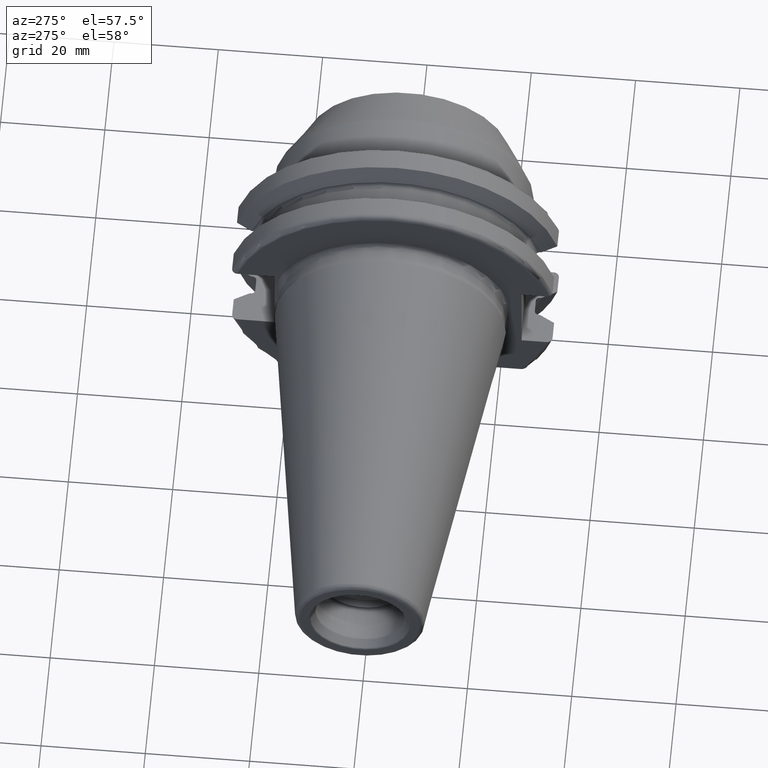
[diagram: clean part render]
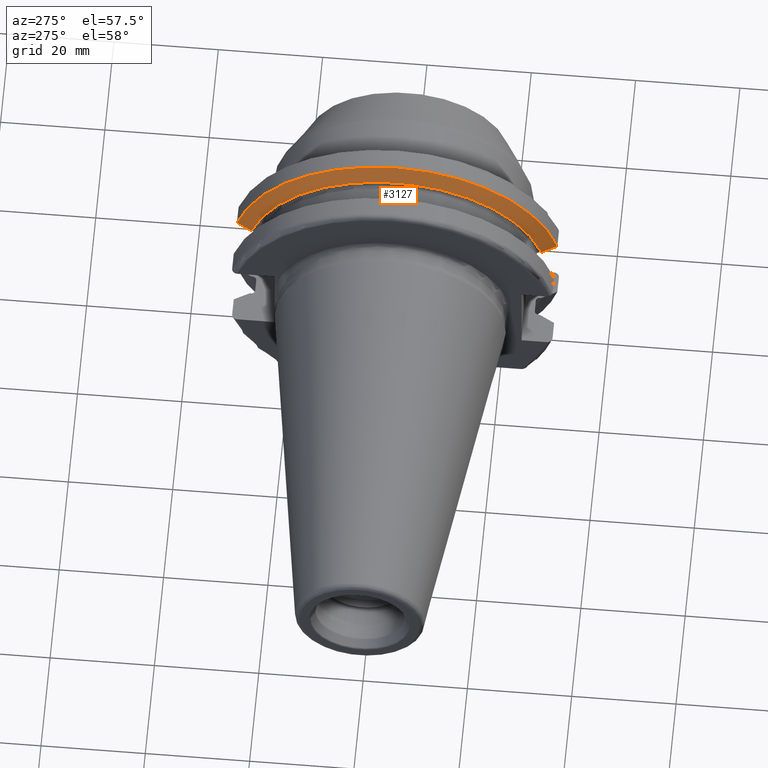
[diagram: same view with one face highlighted and labeled with its STEP entity id]
A machine part, auxiliary view. The second image highlights one B-rep face of the part: STEP entity #3127.
In plain terms, the highlighted conical surface has half-angle 60 deg.
Its self-contained STEP definition (entity closure, byte-faithful):
#1234=CARTESIAN_POINT('',(1.470405352042E1,0.E0,0.E0));
#1235=DIRECTION('',(1.E0,0.E0,0.E0));
#1236=DIRECTION('',(0.E0,9.669363825036E-1,2.550177095632E-1));
#1237=AXIS2_PLACEMENT_3D('',#1234,#1235,#1236);
#1266=CARTESIAN_POINT('',(1.470405352042E1,3.071231684927E1,8.1E0));
#1267=CARTESIAN_POINT('',(1.451824513517E1,3.037948258059E1,8.1E0));
#1268=CARTESIAN_POINT('',(1.415074718503E1,2.972048825911E1,8.1E0));
#1269=CARTESIAN_POINT('',(1.361195207986E1,2.875212438619E1,8.1E0));
#1270=CARTESIAN_POINT('',(1.326094199325E1,2.811971443922E1,8.1E0));
#1271=CARTESIAN_POINT('',(1.30875E1,2.780681820245E1,8.1E0));
#1273=CARTESIAN_POINT('',(1.30875E1,-2.780681820245E1,8.1E0));
#1274=CARTESIAN_POINT('',(1.326086175289E1,-2.811956968242E1,8.1E0));
#1275=CARTESIAN_POINT('',(1.361176448515E1,-2.875178670793E1,8.1E0));
#1276=CARTESIAN_POINT('',(1.415055493375E1,-2.972014324708E1,8.1E0));
#1277=CARTESIAN_POINT('',(1.451816260441E1,-3.037933474515E1,8.1E0));
#1278=CARTESIAN_POINT('',(1.470405352042E1,-3.071231684927E1,8.1E0));
#1280=CARTESIAN_POINT('',(1.30875E1,0.E0,0.E0));
#1281=DIRECTION('',(1.E0,0.E0,0.E0));
#1282=DIRECTION('',(0.E0,9.600957415706E-1,2.796715341576E-1));
#1283=AXIS2_PLACEMENT_3D('',#1280,#1281,#1282);
#1561=CARTESIAN_POINT('',(1.30875E1,2.780681820245E1,8.1E0));
#1562=VERTEX_POINT('',#1561);
#1571=CARTESIAN_POINT('',(1.30875E1,-2.780681820245E1,8.1E0));
#1572=VERTEX_POINT('',#1571);
#1581=VERTEX_POINT('',#1266);
#1582=VERTEX_POINT('',#1278);
#3116=CARTESIAN_POINT('',(1.389577676021E1,0.E0,0.E0));
#3117=DIRECTION('',(1.E0,0.E0,0.E0));
#3118=DIRECTION('',(0.E0,-1.E0,0.E0));
#3119=AXIS2_PLACEMENT_3D('',#3116,#3117,#3118);
#3120=CONICAL_SURFACE('',#3119,3.036252358474E1,6.E1);
#3121=ORIENTED_EDGE('',*,*,#2427,.F.);
#3122=ORIENTED_EDGE('',*,*,#3099,.T.);
#3123=ORIENTED_EDGE('',*,*,#2967,.F.);
#3124=ORIENTED_EDGE('',*,*,#2376,.F.);
#3125=EDGE_LOOP('',(#3121,#3122,#3123,#3124));
#3126=FACE_OUTER_BOUND('',#3125,.F.);
#3127=ADVANCED_FACE('',(#3126),#3120,.T.);
#1238=CIRCLE('',#1237,3.17625E1);
#1272=B_SPLINE_CURVE_WITH_KNOTS('',3,(#1266,#1267,#1268,#1269,#1270,#1271),
.UNSPECIFIED.,.F.,.F.,(4,1,1,4),(0.E0,3.333333333333E-1,6.666666666667E-1,1.E0),
.UNSPECIFIED.);
#1279=B_SPLINE_CURVE_WITH_KNOTS('',3,(#1273,#1274,#1275,#1276,#1277,#1278),
.UNSPECIFIED.,.F.,.F.,(4,1,1,4),(0.E0,3.333333333333E-1,6.666666666667E-1,1.E0),
.UNSPECIFIED.);
#1284=CIRCLE('',#1283,2.896254716948E1);
#2376=EDGE_CURVE('',#1562,#1572,#1284,.T.);
#2427=EDGE_CURVE('',#1581,#1562,#1272,.T.);
#2967=EDGE_CURVE('',#1572,#1582,#1279,.T.);
#3099=EDGE_CURVE('',#1581,#1582,#1238,.T.);